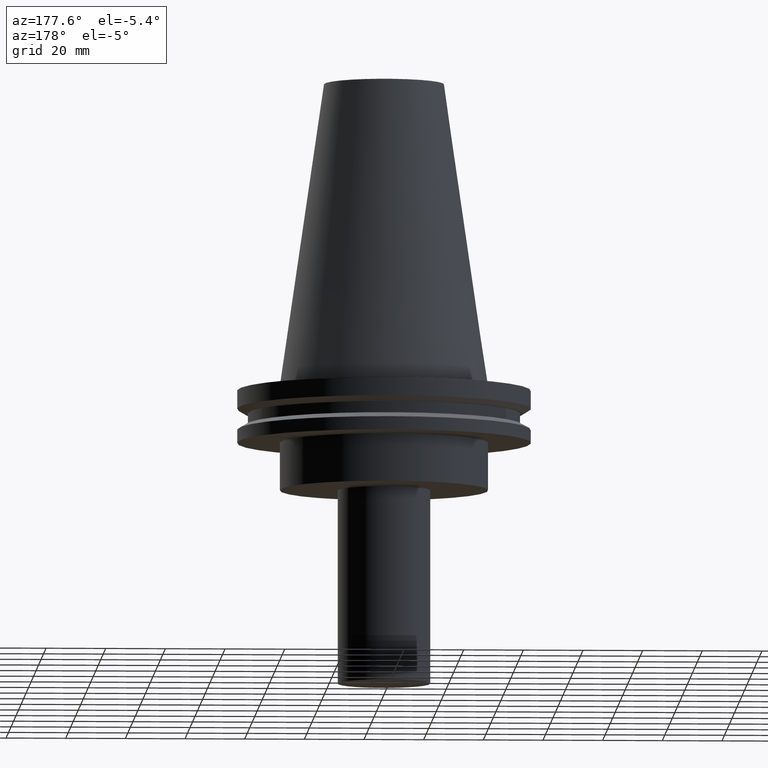
[diagram: clean part render]
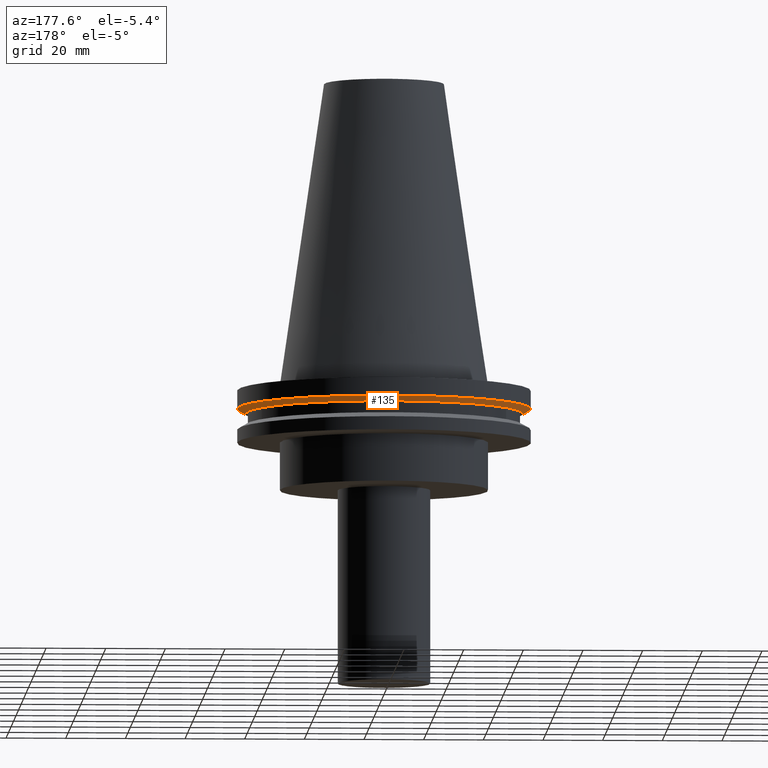
[diagram: same view with one face highlighted and labeled with its STEP entity id]
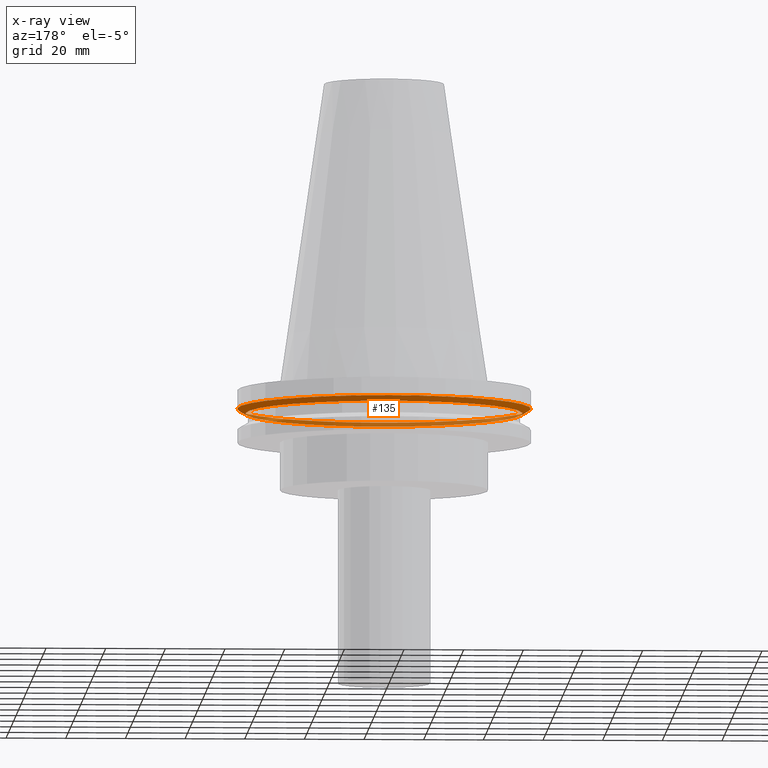
[diagram: x-ray of the same camera — body ghosted, the highlighted face saturated]
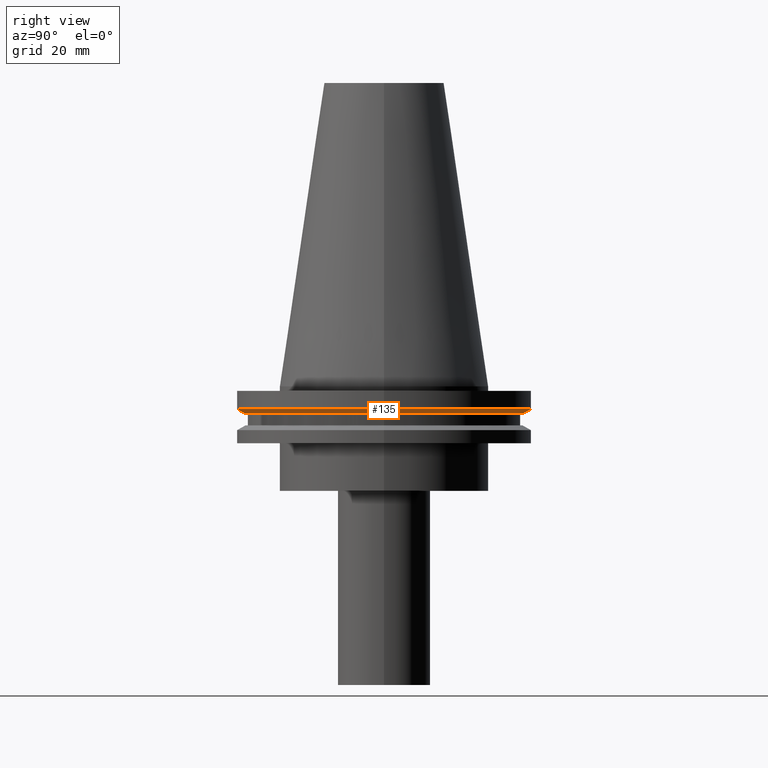
[diagram: same view with one face highlighted and labeled with its STEP entity id]
A machine part, auxiliary view. The second image highlights one B-rep face of the part: STEP entity #135.
The next image is the same camera in x-ray: the body ghosted, the highlighted face saturated — about 36% of this face is hidden behind the body in this view.
A second angle (right view) of the same face is appended — the face is thin or edge-on in the first view.
In plain terms, the highlighted conical surface has half-angle 60 deg.
Its self-contained STEP definition (entity closure, byte-faithful):
#1 = CIRCLE ( 'NONE', #92, 49.21500000000000341 ) ;
#15 = CARTESIAN_POINT ( 'NONE',  ( 49.21500000000000341, 0.000000000000000000, -7.602389855251287187 ) ) ;
#19 = CARTESIAN_POINT ( 'NONE',  ( 0.000000000000000000, 0.000000000000000000, -7.602389855251287187 ) ) ;
#42 = EDGE_LOOP ( 'NONE', ( #177 ) ) ;
#48 = DIRECTION ( 'NONE',  ( -0.000000000000000000, -0.000000000000000000, 1.000000000000000000 ) ) ;
#58 = EDGE_CURVE ( 'NONE', #340, #340, #1, .T. ) ;
#92 = AXIS2_PLACEMENT_3D ( 'NONE', #19, #287, #356 ) ;
#123 = DIRECTION ( 'NONE',  ( -0.000000000000000000, -0.000000000000000000, 1.000000000000000000 ) ) ;
#135 = ADVANCED_FACE ( 'NONE', ( #262, #388 ), #325, .T. ) ;
#164 = CARTESIAN_POINT ( 'NONE',  ( 46.43919780457007818, 0.000000000000000000, -9.204999999999991189 ) ) ;
#165 = DIRECTION ( 'NONE',  ( 1.000000000000000000, 0.000000000000000000, 0.000000000000000000 ) ) ;
#177 = ORIENTED_EDGE ( 'NONE', *, *, #58, .F. ) ;
#179 = ORIENTED_EDGE ( 'NONE', *, *, #355, .T. ) ;
#226 = VERTEX_POINT ( 'NONE', #164 ) ;
#227 = CARTESIAN_POINT ( 'NONE',  ( 0.000000000000000000, 0.000000000000000000, -9.204999999999991189 ) ) ;
#228 = CIRCLE ( 'NONE', #286, 46.43919780457007818 ) ;
#262 = FACE_OUTER_BOUND ( 'NONE', #42, .T. ) ;
#284 = AXIS2_PLACEMENT_3D ( 'NONE', #227, #48, #165 ) ;
#286 = AXIS2_PLACEMENT_3D ( 'NONE', #301, #123, #338 ) ;
#287 = DIRECTION ( 'NONE',  ( -0.000000000000000000, -0.000000000000000000, 1.000000000000000000 ) ) ;
#301 = CARTESIAN_POINT ( 'NONE',  ( 0.000000000000000000, 0.000000000000000000, -9.204999999999991189 ) ) ;
#325 = CONICAL_SURFACE ( 'NONE', #284, 46.43919780457007818, 1.047197551196575205 ) ;
#338 = DIRECTION ( 'NONE',  ( 1.000000000000000000, 0.000000000000000000, 0.000000000000000000 ) ) ;
#340 = VERTEX_POINT ( 'NONE', #15 ) ;
#355 = EDGE_CURVE ( 'NONE', #226, #226, #228, .T. ) ;
#356 = DIRECTION ( 'NONE',  ( 1.000000000000000000, 0.000000000000000000, 0.000000000000000000 ) ) ;
#388 = FACE_BOUND ( 'NONE', #394, .T. ) ;
#394 = EDGE_LOOP ( 'NONE', ( #179 ) ) ;